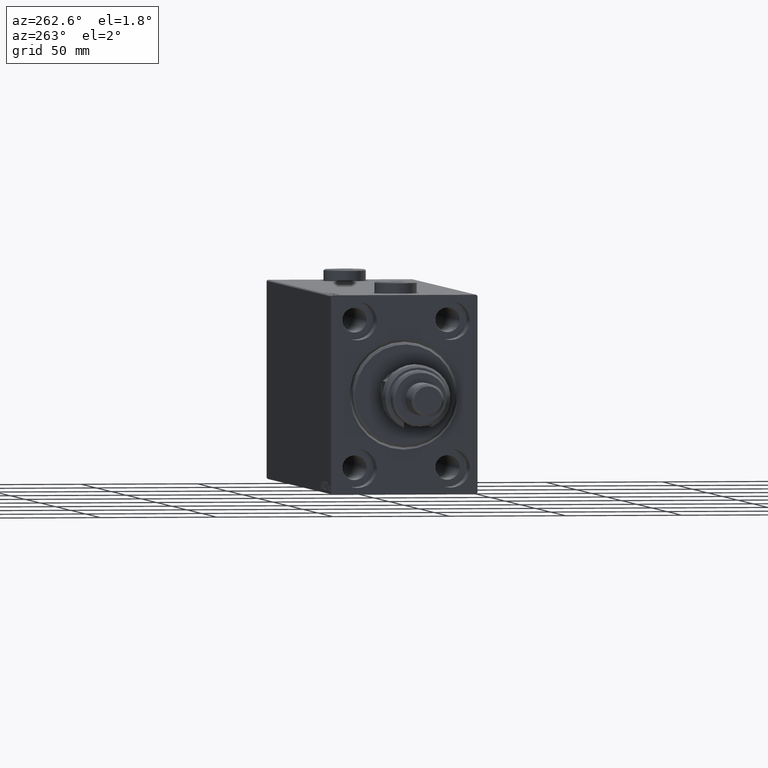
[diagram: clean part render]
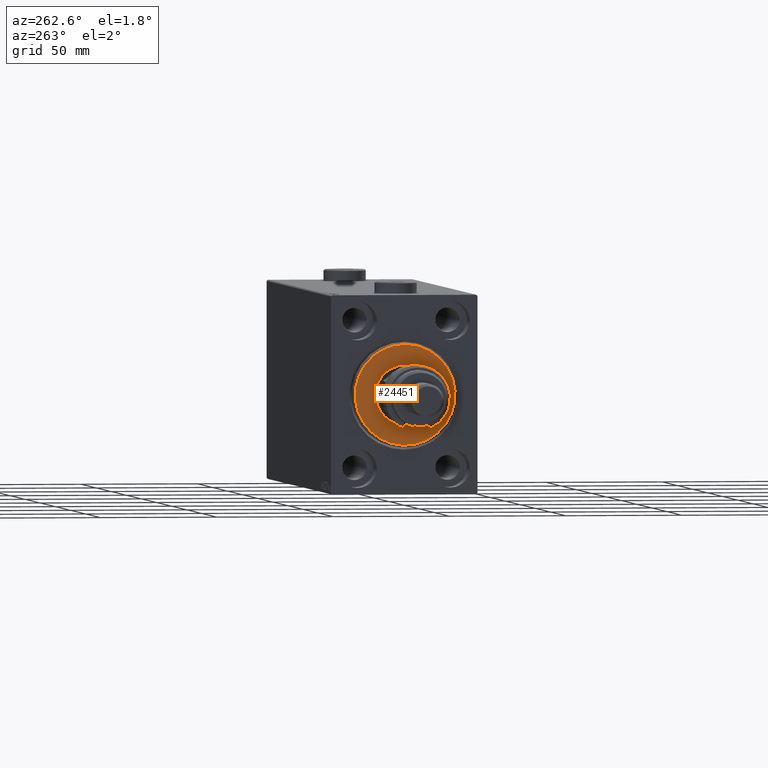
[diagram: same view with one face highlighted and labeled with its STEP entity id]
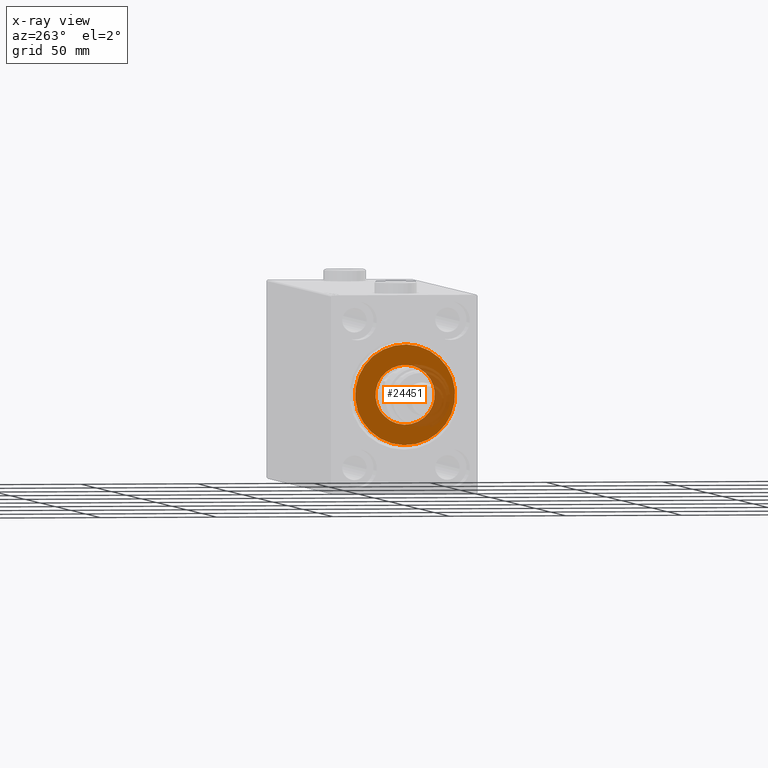
[diagram: x-ray of the same camera — body ghosted, the highlighted face saturated]
A machine part, auxiliary view. The second image highlights one B-rep face of the part: STEP entity #24451.
The next image is the same camera in x-ray: the body ghosted, the highlighted face saturated — about 20% of this face is hidden behind the body in this view.
In plain terms, the highlighted planar face has unit normal (-1, 0, 0).
Its self-contained STEP definition (entity closure, byte-faithful):
#1939 = CIRCLE ( 'NONE', #40683, 21.50000000000000355 ) ;
#2501 = CARTESIAN_POINT ( 'NONE',  ( 3.000000000000000000, 0.000000000000000000, 0.000000000000000000 ) ) ;
#3149 = CARTESIAN_POINT ( 'NONE',  ( 3.000000000000000000, 0.000000000000000000, 12.75000000000000000 ) ) ;
#4351 = AXIS2_PLACEMENT_3D ( 'NONE', #18712, #36477, #40351 ) ;
#5378 = ORIENTED_EDGE ( 'NONE', *, *, #34942, .T. ) ;
#7882 = CARTESIAN_POINT ( 'NONE',  ( 3.000000000000000000, 2.694222958124177598E-15, -21.50000000000000355 ) ) ;
#8769 = EDGE_LOOP ( 'NONE', ( #29899, #45099 ) ) ;
#9270 = VERTEX_POINT ( 'NONE', #3149 ) ;
#11126 = CARTESIAN_POINT ( 'NONE',  ( 3.000000000000000000, 0.000000000000000000, 0.000000000000000000 ) ) ;
#11610 = DIRECTION ( 'NONE',  ( 0.000000000000000000, 0.000000000000000000, -1.000000000000000000 ) ) ;
#14048 = CARTESIAN_POINT ( 'NONE',  ( 3.000000000000000000, 1.561424668912874914E-15, -12.75000000000000000 ) ) ;
#14285 = ORIENTED_EDGE ( 'NONE', *, *, #21175, .T. ) ;
#14353 = FACE_OUTER_BOUND ( 'NONE', #39391, .T. ) ;
#14912 = EDGE_CURVE ( 'NONE', #9270, #18378, #32100, .T. ) ;
#16014 = CARTESIAN_POINT ( 'NONE',  ( 3.000000000000000000, 0.000000000000000000, 0.000000000000000000 ) ) ;
#17161 = EDGE_CURVE ( 'NONE', #18378, #9270, #41444, .T. ) ;
#18175 = AXIS2_PLACEMENT_3D ( 'NONE', #16014, #34250, #23087 ) ;
#18378 = VERTEX_POINT ( 'NONE', #14048 ) ;
#18406 = DIRECTION ( 'NONE',  ( -1.000000000000000000, 0.000000000000000000, -0.000000000000000000 ) ) ;
#18479 = FACE_BOUND ( 'NONE', #8769, .T. ) ;
#18712 = CARTESIAN_POINT ( 'NONE',  ( 3.000000000000000000, 0.000000000000000000, 0.000000000000000000 ) ) ;
#20668 = DIRECTION ( 'NONE',  ( 0.000000000000000000, 0.000000000000000000, -1.000000000000000000 ) ) ;
#21145 = DIRECTION ( 'NONE',  ( 1.000000000000000000, -0.000000000000000000, 0.000000000000000000 ) ) ;
#21175 = EDGE_CURVE ( 'NONE', #34174, #30864, #1939, .T. ) ;
#21904 = DIRECTION ( 'NONE',  ( 1.000000000000000000, -0.000000000000000000, 0.000000000000000000 ) ) ;
#23087 = DIRECTION ( 'NONE',  ( 0.000000000000000000, 0.000000000000000000, -1.000000000000000000 ) ) ;
#24451 = ADVANCED_FACE ( 'NONE', ( #14353, #18479 ), #29176, .T. ) ;
#27143 = CIRCLE ( 'NONE', #35703, 21.50000000000000355 ) ;
#29176 = PLANE ( 'NONE',  #4351 ) ;
#29722 = AXIS2_PLACEMENT_3D ( 'NONE', #11126, #18406, #11610 ) ;
#29899 = ORIENTED_EDGE ( 'NONE', *, *, #14912, .T. ) ;
#30864 = VERTEX_POINT ( 'NONE', #38145 ) ;
#32100 = CIRCLE ( 'NONE', #29722, 12.75000000000000000 ) ;
#34174 = VERTEX_POINT ( 'NONE', #7882 ) ;
#34250 = DIRECTION ( 'NONE',  ( -1.000000000000000000, 0.000000000000000000, -0.000000000000000000 ) ) ;
#34942 = EDGE_CURVE ( 'NONE', #30864, #34174, #27143, .T. ) ;
#35703 = AXIS2_PLACEMENT_3D ( 'NONE', #43243, #21145, #20668 ) ;
#36477 = DIRECTION ( 'NONE',  ( 1.000000000000000000, -0.000000000000000000, 0.000000000000000000 ) ) ;
#36714 = DIRECTION ( 'NONE',  ( 0.000000000000000000, 0.000000000000000000, -1.000000000000000000 ) ) ;
#38145 = CARTESIAN_POINT ( 'NONE',  ( 3.000000000000000000, 0.000000000000000000, 21.50000000000000355 ) ) ;
#39391 = EDGE_LOOP ( 'NONE', ( #5378, #14285 ) ) ;
#40351 = DIRECTION ( 'NONE',  ( 0.000000000000000000, 0.000000000000000000, -1.000000000000000000 ) ) ;
#40683 = AXIS2_PLACEMENT_3D ( 'NONE', #2501, #21904, #36714 ) ;
#41444 = CIRCLE ( 'NONE', #18175, 12.75000000000000000 ) ;
#43243 = CARTESIAN_POINT ( 'NONE',  ( 3.000000000000000000, 0.000000000000000000, 0.000000000000000000 ) ) ;
#45099 = ORIENTED_EDGE ( 'NONE', *, *, #17161, .T. ) ;